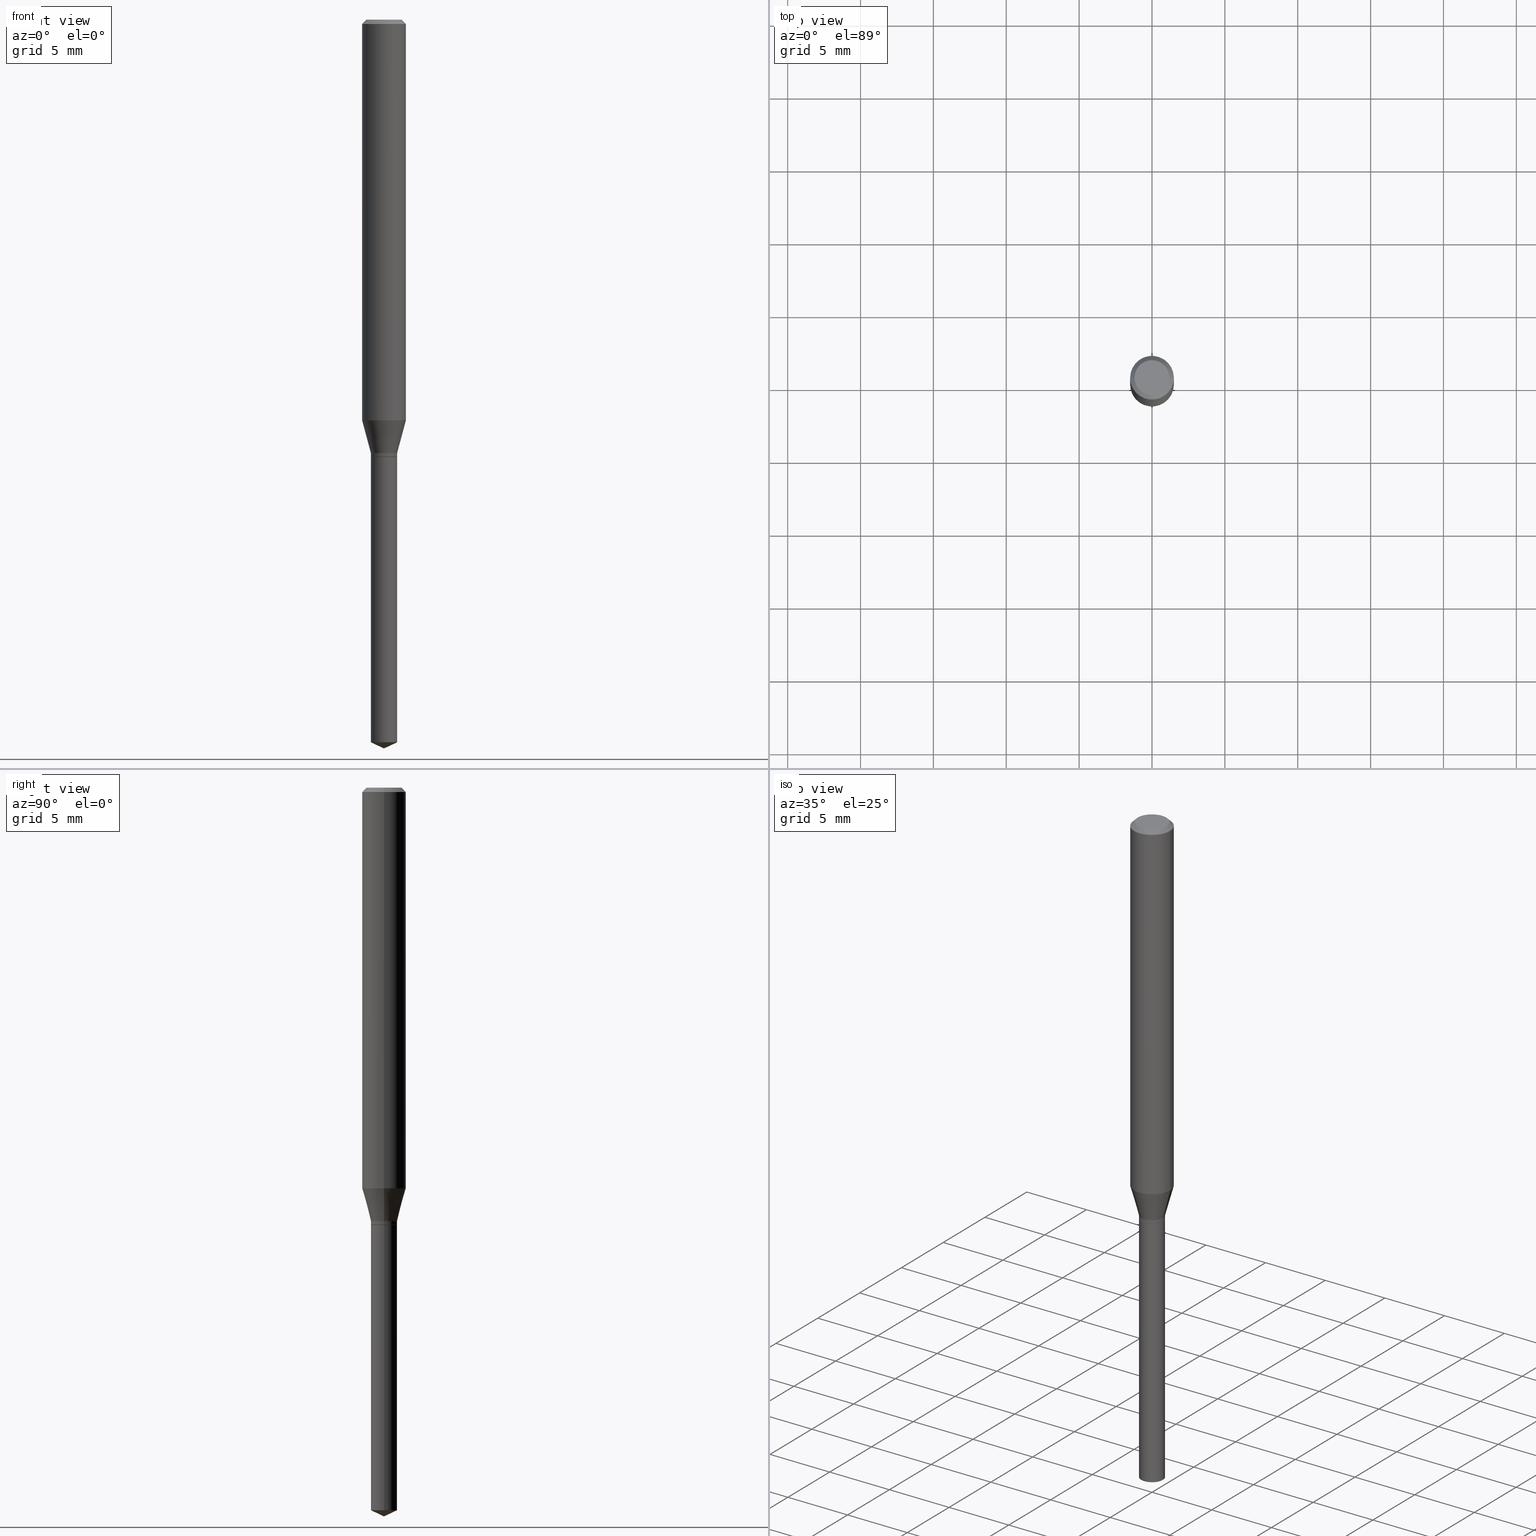
[diagram: canonical four-view strip — front | top / right | iso, engineering-drawing reading convention]
A machine part, canonical four-view strip (front | top / right | iso — engineering-drawing reading convention). The complete STEP part file that produces these views, byte-faithful:
ISO-10303-21;
HEADER;
FILE_DESCRIPTION (( 'STEP AP203' ),
    '1' );
FILE_NAME ('08362.STEP',
    '2024-04-24T14:36:21',
    ( '' ),
    ( '' ),
    'SwSTEP 2.0',
    'SolidWorks 2023',
    '' );
FILE_SCHEMA (( 'CONFIG_CONTROL_DESIGN' ));
ENDSEC;

DATA;
#1 = ORIENTED_EDGE ( 'NONE', *, *, #196, .T. ) ;
#2 = DIRECTION ( 'NONE',  ( 1.000000000000000000, -6.982962677686267499E-15, 0.000000000000000000 ) ) ;
#3 = DIRECTION ( 'NONE',  ( -2.445468806185136597E-29, 3.491481338843145583E-15, 1.000000000000000000 ) ) ;
#4 = ORIENTED_EDGE ( 'NONE', *, *, #399, .T. ) ;
#5 = CARTESIAN_POINT ( 'NONE',  ( 2.888098660104665956E-31, -4.123439461173782728E-17, -0.01181000000000007912 ) ) ;
#6 = CARTESIAN_POINT ( 'NONE',  ( -2.896534483938131925E-30, -8.678357466075359937E-15, -1.181599999999999984 ) ) ;
#7 = PRODUCT_DEFINITION ( 'UNKNOWN', '', #435, #342 ) ;
#8 = DIRECTION ( 'NONE',  ( 0.000000000000000000, 0.000000000000000000, 1.000000000000000000 ) ) ;
#9 = ORIENTED_EDGE ( 'NONE', *, *, #101, .F. ) ;
#10 = DIRECTION ( 'NONE',  ( -2.445468806185136597E-29, 3.491481338843145583E-15, 1.000000000000000000 ) ) ;
#11 = FACE_OUTER_BOUND ( 'NONE', #280, .T. ) ;
#12 = LOCAL_TIME ( 10, 36, 21.00000000000000000, #219 ) ;
#13 = CARTESIAN_POINT ( 'NONE',  ( 0.03545000000000000928, -4.371334636231618486E-15, -1.181100000000000039 ) ) ;
#14 = ORIENTED_EDGE ( 'NONE', *, *, #217, .T. ) ;
#15 = CARTESIAN_POINT ( 'NONE',  ( -0.03545000000000000928, 2.518873998269555818E-16, -1.743762489495364439E-30 ) ) ;
#16 = PRODUCT_DEFINITION_SHAPE ( 'NONE', 'NONE',  #7 ) ;
#17 = DIRECTION ( 'NONE',  ( -2.445468806185136597E-29, 3.491481338843145583E-15, 1.000000000000000000 ) ) ;
#18 = AXIS2_PLACEMENT_3D ( 'NONE', #142, #253, #291 ) ;
#19 = ADVANCED_FACE ( 'NONE', ( #263 ), #76, .T. ) ;
#20 = APPLICATION_CONTEXT ( 'configuration controlled 3d designs of mechanical parts and assemblies' ) ;
#21 = EDGE_LOOP ( 'NONE', ( #344, #14 ) ) ;
#22 = ORIENTED_EDGE ( 'NONE', *, *, #463, .F. ) ;
#23 = EDGE_CURVE ( 'NONE', #143, #188, #192, .T. ) ;
#24 = VERTEX_POINT ( 'NONE', #287 ) ;
#25 = AXIS2_PLACEMENT_3D ( 'NONE', #159, #278, #197 ) ;
#26 = ORIENTED_EDGE ( 'NONE', *, *, #484, .T. ) ;
#27 = PERSON_AND_ORGANIZATION ( #92, #252 ) ;
#28 = PERSON_AND_ORGANIZATION_ROLE ( 'creator' ) ;
#29 = ORIENTED_EDGE ( 'NONE', *, *, #101, .T. ) ;
#30 = ORIENTED_EDGE ( 'NONE', *, *, #158, .F. ) ;
#31 = CARTESIAN_POINT ( 'NONE',  ( 2.888343206985265437E-29, -4.123788609307639813E-15, -1.181100000000000039 ) ) ;
#32 = LINE ( 'NONE', #466, #44 ) ;
#33 = DIRECTION ( 'NONE',  ( -2.445468806185136877E-29, 3.491481338843145188E-15, 1.000000000000000000 ) ) ;
#34 = ADVANCED_FACE ( 'NONE', ( #98 ), #139, .T. ) ;
#35 = PERSON_AND_ORGANIZATION ( #92, #252 ) ;
#36 = CIRCLE ( 'NONE', #301, 0.03545000000000000234 ) ;
#37 = LOCAL_TIME ( 10, 36, 21.00000000000000000, #255 ) ;
#38 = ORIENTED_EDGE ( 'NONE', *, *, #410, .F. ) ;
#39 = DIRECTION ( 'NONE',  ( -2.445468806185136597E-29, 3.491481338843145583E-15, 1.000000000000000000 ) ) ;
#40 = CARTESIAN_POINT ( 'NONE',  ( -0.03545000000000000928, -3.854269228719525270E-15, -1.170999999999999819 ) ) ;
#41 = UNCERTAINTY_MEASURE_WITH_UNIT (LENGTH_MEASURE( 1.000000000000000082E-05 ), #55, 'distance_accuracy_value', 'NONE');
#42 = ADVANCED_FACE ( 'NONE', ( #57 ), #257, .T. ) ;
#43 = DIRECTION ( 'NONE',  ( 0.7071067811864326647, -2.468850131081054837E-15, 0.7071067811866621478 ) ) ;
#44 = VECTOR ( 'NONE', #242, 39.37007874015748854 ) ;
#45 = AXIS2_PLACEMENT_3D ( 'NONE', #115, #338, #382 ) ;
#46 = EDGE_LOOP ( 'NONE', ( #315, #26, #30 ) ) ;
#47 = CYLINDRICAL_SURFACE ( 'NONE', #102, 0.03545000000000000234 ) ;
#48 = CARTESIAN_POINT ( 'NONE',  ( 4.774702996880473666E-29, -6.817010452131907471E-15, -1.952469393518405649 ) ) ;
#49 = DIRECTION ( 'NONE',  ( 1.000000000000000000, -6.982962677686266711E-15, 4.876176775795936353E-29 ) ) ;
#50 = EDGE_CURVE ( 'NONE', #420, #418, #294, .T. ) ;
#51 = ORIENTED_EDGE ( 'NONE', *, *, #431, .F. ) ;
#52 = LINE ( 'NONE', #236, #141 ) ;
#53 = AXIS2_PLACEMENT_3D ( 'NONE', #248, #89, #87 ) ;
#54 =( NAMED_UNIT ( * ) PLANE_ANGLE_UNIT ( ) SI_UNIT ( $, .RADIAN. ) );
#55 =( CONVERSION_BASED_UNIT ( 'INCH', #348 ) LENGTH_UNIT ( ) NAMED_UNIT ( #323 ) );
#56 = ADVANCED_FACE ( 'NONE', ( #11 ), #353, .T. ) ;
#57 = FACE_OUTER_BOUND ( 'NONE', #46, .T. ) ;
#58 = FACE_OUTER_BOUND ( 'NONE', #447, .T. ) ;
#59 = AXIS2_PLACEMENT_3D ( 'NONE', #205, #320, #438 ) ;
#60 = AXIS2_PLACEMENT_3D ( 'NONE', #316, #17, #131 ) ;
#61 = VERTEX_POINT ( 'NONE', #169 ) ;
#62 = ORIENTED_EDGE ( 'NONE', *, *, #317, .T. ) ;
#63 = ORIENTED_EDGE ( 'NONE', *, *, #324, .F. ) ;
#64 = ORIENTED_EDGE ( 'NONE', *, *, #268, .T. ) ;
#65 = EDGE_LOOP ( 'NONE', ( #195, #123, #105, #81 ) ) ;
#66 = DIRECTION ( 'NONE',  ( 1.000000000000000000, -6.982962677686266711E-15, 4.876185090822587894E-29 ) ) ;
#67 = CARTESIAN_POINT ( 'NONE',  ( 0.03545000000000000928, -4.336070674709300958E-15, -1.170999999999999819 ) ) ;
#68 = AXIS2_PLACEMENT_3D ( 'NONE', #375, #120, #346 ) ;
#69 = VECTOR ( 'NONE', #122, 39.37007874015748854 ) ;
#70 = ORIENTED_EDGE ( 'NONE', *, *, #90, .T. ) ;
#71 = CALENDAR_DATE ( 2024, 24, 4 ) ;
#72 = CARTESIAN_POINT ( 'NONE',  ( 0.04724000000000000421, -3.852183633974369838E-16, -3.380025165621689721E-19 ) ) ;
#73 = APPROVAL_ROLE ( '' ) ;
#74 = ORIENTED_EDGE ( 'NONE', *, *, #90, .F. ) ;
#75 = DIRECTION ( 'NONE',  ( -2.445468806185136877E-29, 3.491481338843145188E-15, 1.000000000000000000 ) ) ;
#76 = CYLINDRICAL_SURFACE ( 'NONE', #363, 0.03545000000000000234 ) ;
#77 = AXIS2_PLACEMENT_3D ( 'NONE', #469, #389, #444 ) ;
#78 = CIRCLE ( 'NONE', #45, 0.05905000000000013710 ) ;
#79 = CARTESIAN_POINT ( 'NONE',  ( 2.889565941388358239E-29, -4.125534349977062106E-15, -1.181600000000000206 ) ) ;
#80 = ADVANCED_FACE ( 'NONE', ( #426 ), #88, .F. ) ;
#81 = ORIENTED_EDGE ( 'NONE', *, *, #182, .F. ) ;
#82 = DIRECTION ( 'NONE',  ( 1.000000000000000000, -6.982962677686267499E-15, 0.000000000000000000 ) ) ;
#83 = DIRECTION ( 'NONE',  ( -0.9063077870366547106, 7.915267918739013053E-15, 0.4226182617406894493 ) ) ;
#84 = APPROVAL ( #97, 'UNSPECIFIED' ) ;
#85 = PLANE ( 'NONE',  #77 ) ;
#86 = CONICAL_SURFACE ( 'NONE', #127, 0.05905000000000000526, 0.7853981633974452814 ) ;
#87 = DIRECTION ( 'NONE',  ( 1.000000000000000000, -6.982962677686268288E-15, 0.000000000000000000 ) ) ;
#88 = PLANE ( 'NONE',  #140 ) ;
#89 = DIRECTION ( 'NONE',  ( -2.445468806185136597E-29, 3.491481338843145583E-15, 1.000000000000000000 ) ) ;
#90 = EDGE_CURVE ( 'NONE', #276, #61, #36, .T. ) ;
#91 = FACE_OUTER_BOUND ( 'NONE', #332, .T. ) ;
#92 = PERSON ( 'UNSPECIFIED', 'UNSPECIFIED', 'UNSPECIFIED', ('UNSPECIFIED'), ('UNSPECIFIED'), ('UNSPECIFIED') ) ;
#93 = DIRECTION ( 'NONE',  ( -2.445468806185136597E-29, 3.491481338843145583E-15, 1.000000000000000000 ) ) ;
#94 = VECTOR ( 'NONE', #75, 39.37007874015748143 ) ;
#95 = DIRECTION ( 'NONE',  ( 0.2588190451025211836, 1.565188264969622559E-15, 0.9659258262890679791 ) ) ;
#96 = DIRECTION ( 'NONE',  ( -0.7071067811865453523, 2.468850131082234184E-15, -0.7071067811865496822 ) ) ;
#97 = APPROVAL_STATUS ( 'not_yet_approved' ) ;
#98 = FACE_OUTER_BOUND ( 'NONE', #445, .T. ) ;
#99 = CONICAL_SURFACE ( 'NONE', #68, 0.05905000000000000526, 0.7853981633974452814 ) ;
#100 = ORIENTED_EDGE ( 'NONE', *, *, #303, .T. ) ;
#101 = EDGE_CURVE ( 'NONE', #289, #420, #148, .T. ) ;
#102 = AXIS2_PLACEMENT_3D ( 'NONE', #194, #157, #277 ) ;
#103 = ORIENTED_EDGE ( 'NONE', *, *, #50, .F. ) ;
#104 = PRODUCT ( '08362', '08362', '', ( #485 ) ) ;
#105 = ORIENTED_EDGE ( 'NONE', *, *, #324, .T. ) ;
#106 = ORIENTED_EDGE ( 'NONE', *, *, #393, .F. ) ;
#107 = DATE_AND_TIME ( #411, #12 ) ;
#108 = VERTEX_POINT ( 'NONE', #297 ) ;
#109 = AXIS2_PLACEMENT_3D ( 'NONE', #175, #441, #400 ) ;
#110 = CC_DESIGN_APPROVAL ( #322, ( #7 ) ) ;
#111 = APPROVAL_DATE_TIME ( #331, #237 ) ;
#112 = FACE_OUTER_BOUND ( 'NONE', #456, .T. ) ;
#113 = DIRECTION ( 'NONE',  ( 1.000000000000000000, 0.000000000000000000, 0.000000000000000000 ) ) ;
#114 = VERTEX_POINT ( 'NONE', #339 ) ;
#115 = CARTESIAN_POINT ( 'NONE',  ( 2.648255885583811047E-29, -3.781007544079628812E-15, -1.082923600941374076 ) ) ;
#116 = COORDINATED_UNIVERSAL_TIME_OFFSET ( 5, 0, .BEHIND. ) ;
#117 = ORIENTED_EDGE ( 'NONE', *, *, #130, .F. ) ;
#118 = DIRECTION ( 'NONE',  ( -2.445468806185136597E-29, 3.491481338843145583E-15, 1.000000000000000000 ) ) ;
#119 = AXIS2_PLACEMENT_3D ( 'NONE', #168, #10, #204 ) ;
#120 = DIRECTION ( 'NONE',  ( 2.445468806185136597E-29, -3.491481338843145583E-15, -1.000000000000000000 ) ) ;
#121 = FACE_OUTER_BOUND ( 'NONE', #150, .T. ) ;
#122 = DIRECTION ( 'NONE',  ( -0.7071067811864326647, 7.493145998869937642E-15, 0.7071067811866621478 ) ) ;
#123 = ORIENTED_EDGE ( 'NONE', *, *, #23, .T. ) ;
#124 = DIRECTION ( 'NONE',  ( 1.000000000000000000, -6.982962677686254089E-15, 0.000000000000000000 ) ) ;
#125 = DIRECTION ( 'NONE',  ( -2.445468806185136597E-29, 3.491481338843145583E-15, 1.000000000000000000 ) ) ;
#126 = DIRECTION ( 'NONE',  ( 1.000000000000000000, -6.982962677686266711E-15, 0.000000000000000000 ) ) ;
#127 = AXIS2_PLACEMENT_3D ( 'NONE', #211, #164, #386 ) ;
#128 = CARTESIAN_POINT ( 'NONE',  ( 4.774702996880473666E-29, -6.817010452131907471E-15, -1.952469393518405649 ) ) ;
#129 = ORIENTED_EDGE ( 'NONE', *, *, #458, .T. ) ;
#130 = EDGE_CURVE ( 'NONE', #24, #418, #167, .T. ) ;
#131 = DIRECTION ( 'NONE',  ( 1.000000000000000000, -6.982962677686266711E-15, 4.876176775795936353E-29 ) ) ;
#132 = ORIENTED_EDGE ( 'NONE', *, *, #182, .T. ) ;
#133 =( LENGTH_UNIT ( ) NAMED_UNIT ( * ) SI_UNIT ( $, .METRE. ) );
#134 = DIRECTION ( 'NONE',  ( -2.445468806185136597E-29, 3.491481338843145583E-15, 1.000000000000000000 ) ) ;
#135 = ADVANCED_FACE ( 'NONE', ( #58 ), #86, .T. ) ;
#136 = CARTESIAN_POINT ( 'NONE',  ( 0.03545000000000000928, -4.336070674709300958E-15, -1.170999999999999819 ) ) ;
#137 = APPROVAL_PERSON_ORGANIZATION ( #448, #237, #172 ) ;
#138 = VERTEX_POINT ( 'NONE', #471 ) ;
#139 = CYLINDRICAL_SURFACE ( 'NONE', #18, 0.05905000000000006771 ) ;
#140 = AXIS2_PLACEMENT_3D ( 'NONE', #238, #311, #439 ) ;
#141 = VECTOR ( 'NONE', #281, 39.37007874015748143 ) ;
#142 = CARTESIAN_POINT ( 'NONE',  ( 0.000000000000000000, 0.000000000000000000, 0.000000000000000000 ) ) ;
#143 = VERTEX_POINT ( 'NONE', #246 ) ;
#144 = APPROVAL_DATE_TIME ( #477, #84 ) ;
#145 = ORIENTED_EDGE ( 'NONE', *, *, #303, .F. ) ;
#146 = AXIS2_PLACEMENT_3D ( 'NONE', #128, #464, #124 ) ;
#147 = CARTESIAN_POINT ( 'NONE',  ( -9.146317137672921654E-28, 1.305851684738629534E-13, 37.40107874015748024 ) ) ;
#148 = LINE ( 'NONE', #152, #475 ) ;
#149 = PERSON_AND_ORGANIZATION_ROLE ( 'design_owner' ) ;
#150 = EDGE_LOOP ( 'NONE', ( #210, #51, #381, #100 ) ) ;
#151 = CARTESIAN_POINT ( 'NONE',  ( 2.889565941388358239E-29, -4.125534349977062106E-15, -1.181600000000000206 ) ) ;
#152 = CARTESIAN_POINT ( 'NONE',  ( 0.05905000000000006771, -4.123439461173745257E-16, 2.879382386107503723E-30 ) ) ;
#153 = ORIENTED_EDGE ( 'NONE', *, *, #217, .F. ) ;
#154 = DIRECTION ( 'NONE',  ( -2.445468806185136597E-29, 3.491481338843145583E-15, 1.000000000000000000 ) ) ;
#155 = CONICAL_SURFACE ( 'NONE', #208, 0.03545000000000000928, 0.2617993877991499074 ) ;
#156 = DIRECTION ( 'NONE',  ( -2.445468806185136597E-29, 3.491481338843145583E-15, 1.000000000000000000 ) ) ;
#157 = DIRECTION ( 'NONE',  ( -2.445468806185136597E-29, 3.491481338843145583E-15, 1.000000000000000000 ) ) ;
#158 = EDGE_CURVE ( 'NONE', #309, #138, #358, .T. ) ;
#159 = CARTESIAN_POINT ( 'NONE',  ( 0.000000000000000000, 0.000000000000000000, 0.000000000000000000 ) ) ;
#160 = CYLINDRICAL_SURFACE ( 'NONE', #60, 0.03545000000000000928 ) ;
#161 = CC_DESIGN_APPROVAL ( #237, ( #435 ) ) ;
#162 = ORIENTED_EDGE ( 'NONE', *, *, #368, .F. ) ;
#163 = ORIENTED_EDGE ( 'NONE', *, *, #228, .T. ) ;
#164 = DIRECTION ( 'NONE',  ( 2.445468806185136597E-29, -3.491481338843145583E-15, -1.000000000000000000 ) ) ;
#165 = CARTESIAN_POINT ( 'NONE',  ( 0.05905000000000000526, -4.535783407291119586E-16, -0.01181000000000007912 ) ) ;
#166 = ORIENTED_EDGE ( 'NONE', *, *, #268, .F. ) ;
#167 = LINE ( 'NONE', #359, #207 ) ;
#168 = CARTESIAN_POINT ( 'NONE',  ( 2.863643972042794547E-29, -4.088524647785323075E-15, -1.170999999999999819 ) ) ;
#169 = CARTESIAN_POINT ( 'NONE',  ( -0.03545000000000000234, -5.219385001227529009E-15, -1.181600000000000206 ) ) ;
#170 = CARTESIAN_POINT ( 'NONE',  ( -0.05905000000000000526, -1.491545483879342988E-15, -0.01181000000000007912 ) ) ;
#171 = CC_DESIGN_PERSON_AND_ORGANIZATION_ASSIGNMENT ( #183, #260, ( #218 ) ) ;
#172 = APPROVAL_ROLE ( '' ) ;
#173 = AXIS2_PLACEMENT_3D ( 'NONE', #190, #156, #296 ) ;
#174 = ORIENTED_EDGE ( 'NONE', *, *, #196, .F. ) ;
#175 = CARTESIAN_POINT ( 'NONE',  ( 2.888343206985265437E-29, -4.123788609307639813E-15, -1.181100000000000039 ) ) ;
#176 = EDGE_CURVE ( 'NONE', #138, #309, #487, .T. ) ;
#177 = ORIENTED_EDGE ( 'NONE', *, *, #262, .F. ) ;
#178 = AXIS2_PLACEMENT_3D ( 'NONE', #264, #261, #191 ) ;
#179 = AXIS2_PLACEMENT_3D ( 'NONE', #151, #335, #299 ) ;
#180 = EDGE_LOOP ( 'NONE', ( #250, #1, #74, #313 ) ) ;
#181 = SECURITY_CLASSIFICATION_LEVEL ( 'unclassified' ) ;
#182 = EDGE_CURVE ( 'NONE', #361, #216, #251, .T. ) ;
#183 = PERSON_AND_ORGANIZATION ( #92, #252 ) ;
#184 = CARTESIAN_POINT ( 'NONE',  ( 2.889565941388357678E-29, -4.125534349977061317E-15, -1.181600000000000206 ) ) ;
#185 = CARTESIAN_POINT ( 'NONE',  ( -0.03545000000000000234, -6.565123052304952086E-15, -1.952469393518405649 ) ) ;
#186 = CONICAL_SURFACE ( 'NONE', #226, 0.03545000000000000928, 0.2617993877991499074 ) ;
#187 = APPROVAL_ROLE ( '' ) ;
#188 = VERTEX_POINT ( 'NONE', #13 ) ;
#189 = CARTESIAN_POINT ( 'NONE',  ( -0.05905000000000013710, -3.361432058613288530E-15, -1.082923600941374076 ) ) ;
#190 = CARTESIAN_POINT ( 'NONE',  ( 2.889565941388358239E-29, -4.125534349977062106E-15, -1.181600000000000206 ) ) ;
#191 = DIRECTION ( 'NONE',  ( 1.000000000000000000, -6.982962677686267499E-15, 0.000000000000000000 ) ) ;
#192 = CIRCLE ( 'NONE', #109, 0.03545000000000000928 ) ;
#193 = CIRCLE ( 'NONE', #53, 0.03545000000000000234 ) ;
#194 = CARTESIAN_POINT ( 'NONE',  ( 2.889565941388357118E-29, -4.125534349977060528E-15, -1.181599999999999984 ) ) ;
#195 = ORIENTED_EDGE ( 'NONE', *, *, #421, .F. ) ;
#196 = EDGE_CURVE ( 'NONE', #309, #61, #243, .T. ) ;
#197 = DIRECTION ( 'NONE',  ( 1.000000000000000000, -6.982962677686266711E-15, 4.876176775795936353E-29 ) ) ;
#198 = VERTEX_POINT ( 'NONE', #461 ) ;
#199 = DIRECTION ( 'NONE',  ( 0.9063077870366547106, -4.853149677051446632E-15, 0.4226182617406894493 ) ) ;
#200 = CIRCLE ( 'NONE', #424, 0.04724000000000000421 ) ;
#201 = AXIS2_PLACEMENT_3D ( 'NONE', #147, #3, #414 ) ;
#202 = DIRECTION ( 'NONE',  ( 1.000000000000000000, -6.982962677686266711E-15, 0.000000000000000000 ) ) ;
#203 =( NAMED_UNIT ( * ) SI_UNIT ( $, .STERADIAN. ) SOLID_ANGLE_UNIT ( ) );
#204 = DIRECTION ( 'NONE',  ( 1.000000000000000000, -6.982962677686266711E-15, 0.000000000000000000 ) ) ;
#205 = CARTESIAN_POINT ( 'NONE',  ( -9.146317137672921654E-28, 1.305851684738629534E-13, 37.40107874015748024 ) ) ;
#206 = ORIENTED_EDGE ( 'NONE', *, *, #449, .T. ) ;
#207 = VECTOR ( 'NONE', #96, 39.37007874015748143 ) ;
#208 = AXIS2_PLACEMENT_3D ( 'NONE', #468, #125, #202 ) ;
#209 = ADVANCED_FACE ( 'NONE', ( #430 ), #85, .F. ) ;
#210 = ORIENTED_EDGE ( 'NONE', *, *, #489, .F. ) ;
#211 = CARTESIAN_POINT ( 'NONE',  ( 2.888098660104665956E-31, -4.123439461173782728E-17, -0.01181000000000007912 ) ) ;
#212 = ORIENTED_EDGE ( 'NONE', *, *, #23, .F. ) ;
#213 = EDGE_LOOP ( 'NONE', ( #106, #64, #472, #212 ) ) ;
#214 = ORIENTED_EDGE ( 'NONE', *, *, #410, .T. ) ;
#215 = DATE_TIME_ROLE ( 'creation_date' ) ;
#216 = VERTEX_POINT ( 'NONE', #67 ) ;
#217 = EDGE_CURVE ( 'NONE', #333, #24, #200, .T. ) ;
#218 = SECURITY_CLASSIFICATION ( '', '', #181 ) ;
#219 = COORDINATED_UNIVERSAL_TIME_OFFSET ( 5, 0, .BEHIND. ) ;
#220 = DIRECTION ( 'NONE',  ( -2.445468806185136597E-29, 3.491481338843145583E-15, 1.000000000000000000 ) ) ;
#221 = PERSON_AND_ORGANIZATION_ROLE ( 'design_supplier' ) ;
#222 = CARTESIAN_POINT ( 'NONE',  ( 0.05905000000000013710, -4.193351490197004521E-15, -1.082923600941374076 ) ) ;
#223 = DIRECTION ( 'NONE',  ( -2.445468806185136597E-29, 3.491481338843145583E-15, 1.000000000000000000 ) ) ;
#224 = PERSON_AND_ORGANIZATION ( #92, #252 ) ;
#225 = LINE ( 'NONE', #419, #69 ) ;
#226 = AXIS2_PLACEMENT_3D ( 'NONE', #341, #369, #300 ) ;
#227 = CIRCLE ( 'NONE', #173, 0.03495000000000000190 ) ;
#228 = EDGE_CURVE ( 'NONE', #361, #398, #32, .T. ) ;
#229 = APPROVAL_STATUS ( 'not_yet_approved' ) ;
#230 = PLANE ( 'NONE',  #265 ) ;
#231 = DIRECTION ( 'NONE',  ( 1.000000000000000000, -6.982962677686264344E-15, 0.000000000000000000 ) ) ;
#232 = ORIENTED_EDGE ( 'NONE', *, *, #449, .F. ) ;
#233 = EDGE_CURVE ( 'NONE', #216, #361, #272, .T. ) ;
#234 = CARTESIAN_POINT ( 'NONE',  ( 4.815128079378533515E-29, -6.874726756182153211E-15, -1.968999999999999861 ) ) ;
#235 = LOCAL_TIME ( 10, 36, 21.00000000000000000, #408 ) ;
#236 = CARTESIAN_POINT ( 'NONE',  ( 0.05905000000000000526, -4.463468013801467941E-16, -0.01181000000000007912 ) ) ;
#237 = APPROVAL ( #229, 'UNSPECIFIED' ) ;
#238 = CARTESIAN_POINT ( 'NONE',  ( -3.351358430974200097E-30, -8.743490843988069203E-15, -1.181600000000000206 ) ) ;
#239 = ADVANCED_FACE ( 'NONE', ( #121 ), #99, .T. ) ;
#240 = DIRECTION ( 'NONE',  ( 1.000000000000000000, -6.982962677686267499E-15, 0.000000000000000000 ) ) ;
#241 = DIRECTION ( 'NONE',  ( -2.445468806185136877E-29, 3.491481338843145188E-15, 1.000000000000000000 ) ) ;
#242 = DIRECTION ( 'NONE',  ( -0.2588190451025211836, 5.211531920934547886E-15, 0.9659258262890679791 ) ) ;
#243 = LINE ( 'NONE', #392, #345 ) ;
#244 = AXIS2_PLACEMENT_3D ( 'NONE', #379, #154, #231 ) ;
#245 = VECTOR ( 'NONE', #427, 39.37007874015748143 ) ;
#246 = CARTESIAN_POINT ( 'NONE',  ( -0.03545000000000000928, -3.854269228719525270E-15, -1.181100000000000039 ) ) ;
#247 = FACE_OUTER_BOUND ( 'NONE', #275, .T. ) ;
#248 = CARTESIAN_POINT ( 'NONE',  ( 2.889565941388357678E-29, -4.125534349977061317E-15, -1.181600000000000206 ) ) ;
#249 = SHAPE_DEFINITION_REPRESENTATION ( #16, #478 ) ;
#250 = ORIENTED_EDGE ( 'NONE', *, *, #176, .T. ) ;
#251 = CIRCLE ( 'NONE', #119, 0.03545000000000000928 ) ;
#252 = ORGANIZATION ( 'UNSPECIFIED', 'UNSPECIFIED', '' ) ;
#253 = DIRECTION ( 'NONE',  ( -2.445468806185136597E-29, 3.491481338843145583E-15, 1.000000000000000000 ) ) ;
#254 = ADVANCED_FACE ( 'NONE', ( #412 ), #186, .T. ) ;
#255 = COORDINATED_UNIVERSAL_TIME_OFFSET ( 5, 0, .BEHIND. ) ;
#256 = ORIENTED_EDGE ( 'NONE', *, *, #393, .T. ) ;
#257 = CONICAL_SURFACE ( 'NONE', #59, 84.42940631927639572, 1.134464013796325332 ) ;
#258 = DATE_AND_TIME ( #293, #425 ) ;
#259 = FACE_OUTER_BOUND ( 'NONE', #180, .T. ) ;
#260 = PERSON_AND_ORGANIZATION_ROLE ( 'classification_officer' ) ;
#261 = DIRECTION ( 'NONE',  ( -2.445468806185136597E-29, 3.491481338843145583E-15, 1.000000000000000000 ) ) ;
#262 = EDGE_CURVE ( 'NONE', #108, #188, #460, .T. ) ;
#263 = FACE_OUTER_BOUND ( 'NONE', #292, .T. ) ;
#264 = CARTESIAN_POINT ( 'NONE',  ( 2.888098660104665956E-31, -4.123439461173782728E-17, -0.01181000000000007912 ) ) ;
#265 = AXIS2_PLACEMENT_3D ( 'NONE', #6, #490, #409 ) ;
#266 = CIRCLE ( 'NONE', #290, 0.03495000000000000190 ) ;
#267 = CARTESIAN_POINT ( 'NONE',  ( 2.889565941388358239E-29, -4.125534349977062106E-15, -1.181600000000000206 ) ) ;
#268 = EDGE_CURVE ( 'NONE', #114, #108, #266, .T. ) ;
#269 = MANIFOLD_SOLID_BREP ( 'Body-Move/Copy2[2]', #383 ) ;
#270 = LINE ( 'NONE', #234, #273 ) ;
#271 = APPLICATION_PROTOCOL_DEFINITION ( 'international standard', 'config_control_design', 1994, #20 ) ;
#272 = CIRCLE ( 'NONE', #482, 0.03545000000000000928 ) ;
#273 = VECTOR ( 'NONE', #83, 39.37007874015748854 ) ;
#274 = CARTESIAN_POINT ( 'NONE',  ( -0.05905000000000006771, 4.195754854663396409E-16, -2.904631170795525045E-30 ) ) ;
#275 = EDGE_LOOP ( 'NONE', ( #467, #163, #330, #22 ) ) ;
#276 = VERTEX_POINT ( 'NONE', #343 ) ;
#277 = DIRECTION ( 'NONE',  ( 1.000000000000000000, -6.982962677686254089E-15, 0.000000000000000000 ) ) ;
#278 = DIRECTION ( 'NONE',  ( -2.445468806185136597E-29, 3.491481338843145583E-15, 1.000000000000000000 ) ) ;
#279 = DIRECTION ( 'NONE',  ( 1.000000000000000000, -6.982962677686254089E-15, 0.000000000000000000 ) ) ;
#280 = EDGE_LOOP ( 'NONE', ( #232, #214, #29, #145 ) ) ;
#281 = DIRECTION ( 'NONE',  ( 0.7071067811865453523, -7.319954787623248157E-15, -0.7071067811865496822 ) ) ;
#282 = CONICAL_SURFACE ( 'NONE', #179, 0.03495000000000000190, 0.7853981633972860754 ) ;
#283 = CONICAL_SURFACE ( 'NONE', #201, 84.42940631927639572, 1.134464013796325332 ) ;
#284 = DIRECTION ( 'NONE',  ( 1.000000000000000000, -6.982962677686266711E-15, 4.876185090822587894E-29 ) ) ;
#285 = EDGE_CURVE ( 'NONE', #188, #143, #350, .T. ) ;
#286 = PERSON_AND_ORGANIZATION_ROLE ( 'creator' ) ;
#287 = CARTESIAN_POINT ( 'NONE',  ( -0.04724000000000000421, 3.504923541997677355E-16, -3.380025165670481712E-19 ) ) ;
#288 = CARTESIAN_POINT ( 'NONE',  ( 2.889565941388357118E-29, -4.125534349977060528E-15, -1.181599999999999984 ) ) ;
#289 = VERTEX_POINT ( 'NONE', #222 ) ;
#290 = AXIS2_PLACEMENT_3D ( 'NONE', #267, #118, #82 ) ;
#291 = DIRECTION ( 'NONE',  ( 1.000000000000000000, -6.982962677686266711E-15, 4.876176775795936353E-29 ) ) ;
#292 = EDGE_LOOP ( 'NONE', ( #174, #321, #129, #454 ) ) ;
#293 = CALENDAR_DATE ( 2024, 24, 4 ) ;
#294 = CIRCLE ( 'NONE', #374, 0.05905000000000000526 ) ;
#295 = ADVANCED_FACE ( 'NONE', ( #452 ), #230, .F. ) ;
#296 = DIRECTION ( 'NONE',  ( 1.000000000000000000, -6.982962677686267499E-15, 0.000000000000000000 ) ) ;
#297 = CARTESIAN_POINT ( 'NONE',  ( 0.03495000000000000190, -4.369588895562196982E-15, -1.181600000000000206 ) ) ;
#298 = DATE_AND_TIME ( #319, #470 ) ;
#299 = DIRECTION ( 'NONE',  ( 1.000000000000000000, -6.982962677686267499E-15, 0.000000000000000000 ) ) ;
#300 = DIRECTION ( 'NONE',  ( 1.000000000000000000, -6.982962677686266711E-15, 0.000000000000000000 ) ) ;
#301 = AXIS2_PLACEMENT_3D ( 'NONE', #184, #223, #371 ) ;
#302 = AXIS2_PLACEMENT_3D ( 'NONE', #347, #8, #113 ) ;
#303 = EDGE_CURVE ( 'NONE', #418, #420, #391, .T. ) ;
#304 = FACE_OUTER_BOUND ( 'NONE', #364, .T. ) ;
#305 = CC_DESIGN_PERSON_AND_ORGANIZATION_ASSIGNMENT ( #27, #149, ( #104 ) ) ;
#306 = CC_DESIGN_DATE_AND_TIME_ASSIGNMENT ( #298, #215, ( #7 ) ) ;
#307 = CARTESIAN_POINT ( 'NONE',  ( 4.815128079378533515E-29, -6.874726756182153211E-15, -1.968999999999999861 ) ) ;
#308 = FACE_OUTER_BOUND ( 'NONE', #65, .T. ) ;
#309 = VERTEX_POINT ( 'NONE', #185 ) ;
#310 = VECTOR ( 'NONE', #241, 39.37007874015748143 ) ;
#311 = DIRECTION ( 'NONE',  ( -2.438088387897960049E-29, 3.491481338843145188E-15, 1.000000000000000000 ) ) ;
#312 = CARTESIAN_POINT ( 'NONE',  ( 0.03545000000000000234, -4.373080376901038411E-15, -1.181599999999999984 ) ) ;
#313 = ORIENTED_EDGE ( 'NONE', *, *, #458, .F. ) ;
#314 = LINE ( 'NONE', #136, #328 ) ;
#315 = ORIENTED_EDGE ( 'NONE', *, *, #399, .F. ) ;
#316 = CARTESIAN_POINT ( 'NONE',  ( 0.000000000000000000, 0.000000000000000000, 0.000000000000000000 ) ) ;
#317 = EDGE_CURVE ( 'NONE', #289, #398, #459, .T. ) ;
#318 = AXIS2_PLACEMENT_3D ( 'NONE', #79, #462, #2 ) ;
#319 = CALENDAR_DATE ( 2024, 24, 4 ) ;
#320 = DIRECTION ( 'NONE',  ( -2.445468806185136597E-29, 3.491481338843145583E-15, 1.000000000000000000 ) ) ;
#321 = ORIENTED_EDGE ( 'NONE', *, *, #158, .T. ) ;
#322 = APPROVAL ( #337, 'UNSPECIFIED' ) ;
#323 = DIMENSIONAL_EXPONENTS ( 1.000000000000000000, 0.000000000000000000, 0.000000000000000000, 0.000000000000000000, 0.000000000000000000, 0.000000000000000000, 0.000000000000000000 ) ;
#324 = EDGE_CURVE ( 'NONE', #188, #216, #457, .T. ) ;
#325 = DIRECTION ( 'NONE',  ( 1.000000000000000000, -6.982962677686254089E-15, 0.000000000000000000 ) ) ;
#326 = ORIENTED_EDGE ( 'NONE', *, *, #479, .T. ) ;
#327 = AXIS2_PLACEMENT_3D ( 'NONE', #436, #474, #49 ) ;
#328 = VECTOR ( 'NONE', #95, 39.37007874015748854 ) ;
#329 = CARTESIAN_POINT ( 'NONE',  ( 2.863643972042794547E-29, -4.088524647785323075E-15, -1.170999999999999819 ) ) ;
#330 = ORIENTED_EDGE ( 'NONE', *, *, #317, .F. ) ;
#331 = DATE_AND_TIME ( #71, #37 ) ;
#332 = EDGE_LOOP ( 'NONE', ( #465, #373, #388, #63 ) ) ;
#333 = VERTEX_POINT ( 'NONE', #72 ) ;
#334 = ADVANCED_FACE ( 'NONE', ( #488 ), #282, .T. ) ;
#335 = DIRECTION ( 'NONE',  ( -2.445468806185136597E-29, 3.491481338843145583E-15, 1.000000000000000000 ) ) ;
#336 = VECTOR ( 'NONE', #199, 39.37007874015748854 ) ;
#337 = APPROVAL_STATUS ( 'not_yet_approved' ) ;
#338 = DIRECTION ( 'NONE',  ( -2.445468806185136597E-29, 3.491481338843145583E-15, 1.000000000000000000 ) ) ;
#339 = CARTESIAN_POINT ( 'NONE',  ( -0.03495000000000000190, -3.874550436654795630E-15, -1.181600000000000206 ) ) ;
#340 = ORIENTED_EDGE ( 'NONE', *, *, #489, .T. ) ;
#341 = CARTESIAN_POINT ( 'NONE',  ( 2.863643972042794547E-29, -4.088524647785323075E-15, -1.170999999999999819 ) ) ;
#342 = DESIGN_CONTEXT ( 'detailed design', #384, 'design' ) ;
#343 = CARTESIAN_POINT ( 'NONE',  ( 0.03545000000000000234, -4.373080376901039200E-15, -1.181600000000000206 ) ) ;
#344 = ORIENTED_EDGE ( 'NONE', *, *, #431, .T. ) ;
#345 = VECTOR ( 'NONE', #33, 39.37007874015748143 ) ;
#346 = DIRECTION ( 'NONE',  ( -1.000000000000000000, 6.982962677686267499E-15, 0.000000000000000000 ) ) ;
#347 = CARTESIAN_POINT ( 'NONE',  ( 0.000000000000000000, 0.000000000000000000, 0.000000000000000000 ) ) ;
#348 = LENGTH_MEASURE_WITH_UNIT ( LENGTH_MEASURE( 0.02539999999999999897 ), #133 );
#349 = EDGE_LOOP ( 'NONE', ( #162, #166 ) ) ;
#350 = CIRCLE ( 'NONE', #481, 0.03545000000000000928 ) ;
#351 = AXIS2_PLACEMENT_3D ( 'NONE', #352, #433, #284 ) ;
#352 = CARTESIAN_POINT ( 'NONE',  ( 8.265746106709734507E-48, -1.180129479067563789E-33, -3.380025165646692144E-19 ) ) ;
#353 = CYLINDRICAL_SURFACE ( 'NONE', #25, 0.05905000000000006771 ) ;
#354 = ADVANCED_FACE ( 'NONE', ( #112 ), #283, .T. ) ;
#355 = LINE ( 'NONE', #274, #245 ) ;
#356 = PRODUCT_RELATED_PRODUCT_CATEGORY ( 'detail', '', ( #104 ) ) ;
#357 = CC_DESIGN_DATE_AND_TIME_ASSIGNMENT ( #107, #377, ( #218 ) ) ;
#358 = CIRCLE ( 'NONE', #434, 0.03545000000000000234 ) ;
#359 = CARTESIAN_POINT ( 'NONE',  ( -0.05905000000000000526, 3.711095515056362547E-16, -0.01181000000000007912 ) ) ;
#360 = EDGE_LOOP ( 'NONE', ( #402, #132, #367, #38 ) ) ;
#361 = VERTEX_POINT ( 'NONE', #40 ) ;
#362 = PERSON_AND_ORGANIZATION ( #92, #252 ) ;
#363 = AXIS2_PLACEMENT_3D ( 'NONE', #288, #480, #325 ) ;
#364 = EDGE_LOOP ( 'NONE', ( #378, #256, #423, #177 ) ) ;
#365 = CIRCLE ( 'NONE', #351, 0.04724000000000000421 ) ;
#366 = PERSON_AND_ORGANIZATION ( #92, #252 ) ;
#367 = ORIENTED_EDGE ( 'NONE', *, *, #463, .T. ) ;
#368 = EDGE_CURVE ( 'NONE', #108, #114, #227, .T. ) ;
#369 = DIRECTION ( 'NONE',  ( -2.445468806185136597E-29, 3.491481338843145583E-15, 1.000000000000000000 ) ) ;
#370 = DIRECTION ( 'NONE',  ( -2.445468806185136597E-29, 3.491481338843145583E-15, 1.000000000000000000 ) ) ;
#371 = DIRECTION ( 'NONE',  ( 1.000000000000000000, -6.982962677686268288E-15, 0.000000000000000000 ) ) ;
#372 = CALENDAR_DATE ( 2024, 24, 4 ) ;
#373 = ORIENTED_EDGE ( 'NONE', *, *, #421, .T. ) ;
#374 = AXIS2_PLACEMENT_3D ( 'NONE', #5, #93, #240 ) ;
#375 = CARTESIAN_POINT ( 'NONE',  ( 2.888098660104665956E-31, -4.123439461173782728E-17, -0.01181000000000007912 ) ) ;
#376 = DIRECTION ( 'NONE',  ( -2.445468806185136877E-29, 3.491481338843145188E-15, 1.000000000000000000 ) ) ;
#377 = DATE_TIME_ROLE ( 'classification_date' ) ;
#378 = ORIENTED_EDGE ( 'NONE', *, *, #368, .T. ) ;
#379 = CARTESIAN_POINT ( 'NONE',  ( 2.648255885583811047E-29, -3.781007544079628812E-15, -1.082923600941374076 ) ) ;
#380 = CARTESIAN_POINT ( 'NONE',  ( 0.03545000000000000928, -2.475460269239782286E-16, 1.728604667019659791E-30 ) ) ;
#381 = ORIENTED_EDGE ( 'NONE', *, *, #130, .T. ) ;
#382 = DIRECTION ( 'NONE',  ( 1.000000000000000000, -6.982962677686264344E-15, 0.000000000000000000 ) ) ;
#383 = CLOSED_SHELL ( 'NONE', ( #385, #135, #34, #446, #440, #428, #254, #56, #239, #209, #80, #334 ) ) ;
#384 = APPLICATION_CONTEXT ( 'configuration controlled 3d designs of mechanical parts and assemblies' ) ;
#385 = ADVANCED_FACE ( 'NONE', ( #304 ), #397, .T. ) ;
#386 = DIRECTION ( 'NONE',  ( -1.000000000000000000, 6.982962677686267499E-15, 0.000000000000000000 ) ) ;
#387 = LINE ( 'NONE', #15, #406 ) ;
#388 = ORIENTED_EDGE ( 'NONE', *, *, #233, .F. ) ;
#389 = DIRECTION ( 'NONE',  ( 2.438088387897960049E-29, -3.491481338843145188E-15, -1.000000000000000000 ) ) ;
#390 = LINE ( 'NONE', #307, #336 ) ;
#391 = CIRCLE ( 'NONE', #178, 0.05905000000000000526 ) ;
#392 = CARTESIAN_POINT ( 'NONE',  ( -0.03545000000000000234, -3.873646950150105143E-15, -1.181599999999999984 ) ) ;
#393 = EDGE_CURVE ( 'NONE', #114, #143, #225, .T. ) ;
#394 = EDGE_LOOP ( 'NONE', ( #70, #326 ) ) ;
#395 = CC_DESIGN_PERSON_AND_ORGANIZATION_ASSIGNMENT ( #362, #28, ( #435 ) ) ;
#396 = ORIENTED_EDGE ( 'NONE', *, *, #176, .F. ) ;
#397 = CONICAL_SURFACE ( 'NONE', #318, 0.03495000000000000190, 0.7853981633972860754 ) ;
#398 = VERTEX_POINT ( 'NONE', #189 ) ;
#399 = EDGE_CURVE ( 'NONE', #198, #309, #270, .T. ) ;
#400 = DIRECTION ( 'NONE',  ( 1.000000000000000000, -6.982962677686266711E-15, 0.000000000000000000 ) ) ;
#401 = CARTESIAN_POINT ( 'NONE',  ( 8.265746106709734507E-48, -1.180129479067563789E-33, -3.380025165646692144E-19 ) ) ;
#402 = ORIENTED_EDGE ( 'NONE', *, *, #228, .F. ) ;
#403 = COORDINATED_UNIVERSAL_TIME_OFFSET ( 5, 0, .BEHIND. ) ;
#404 = APPROVAL_DATE_TIME ( #258, #322 ) ;
#405 = CLOSED_SHELL ( 'NONE', ( #413, #354, #42, #19, #295 ) ) ;
#406 = VECTOR ( 'NONE', #429, 39.37007874015748143 ) ;
#407 = ORIENTED_EDGE ( 'NONE', *, *, #484, .F. ) ;
#408 = COORDINATED_UNIVERSAL_TIME_OFFSET ( 5, 0, .BEHIND. ) ;
#409 = DIRECTION ( 'NONE',  ( -1.000000000000000000, 6.982962677686265922E-15, -4.876176775795935793E-29 ) ) ;
#410 = EDGE_CURVE ( 'NONE', #398, #289, #78, .T. ) ;
#411 = CALENDAR_DATE ( 2024, 24, 4 ) ;
#412 = FACE_OUTER_BOUND ( 'NONE', #360, .T. ) ;
#413 = ADVANCED_FACE ( 'NONE', ( #259 ), #47, .T. ) ;
#414 = DIRECTION ( 'NONE',  ( 1.000000000000000000, -6.982962677686267499E-15, 0.000000000000000000 ) ) ;
#415 = CC_DESIGN_APPROVAL ( #84, ( #218 ) ) ;
#416 = CC_DESIGN_PERSON_AND_ORGANIZATION_ASSIGNMENT ( #224, #286, ( #7 ) ) ;
#417 = DIRECTION ( 'NONE',  ( 1.000000000000000000, -6.982962677686266711E-15, 0.000000000000000000 ) ) ;
#418 = VERTEX_POINT ( 'NONE', #170 ) ;
#419 = CARTESIAN_POINT ( 'NONE',  ( -0.03495000000000000190, -3.877199663828906831E-15, -1.181600000000000206 ) ) ;
#420 = VERTEX_POINT ( 'NONE', #165 ) ;
#421 = EDGE_CURVE ( 'NONE', #143, #361, #387, .T. ) ;
#422 = LINE ( 'NONE', #312, #310 ) ;
#423 = ORIENTED_EDGE ( 'NONE', *, *, #285, .F. ) ;
#424 = AXIS2_PLACEMENT_3D ( 'NONE', #401, #370, #66 ) ;
#425 = LOCAL_TIME ( 10, 36, 21.00000000000000000, #403 ) ;
#426 = FACE_OUTER_BOUND ( 'NONE', #349, .T. ) ;
#427 = DIRECTION ( 'NONE',  ( -2.445468806185136877E-29, 3.491481338843145188E-15, 1.000000000000000000 ) ) ;
#428 = ADVANCED_FACE ( 'NONE', ( #308 ), #160, .T. ) ;
#429 = DIRECTION ( 'NONE',  ( -2.445468806185136877E-29, 3.491481338843145188E-15, 1.000000000000000000 ) ) ;
#430 = FACE_OUTER_BOUND ( 'NONE', #21, .T. ) ;
#431 = EDGE_CURVE ( 'NONE', #24, #333, #365, .T. ) ;
#432 = MANIFOLD_SOLID_BREP ( 'Body-Move/Copy2[1]', #405 ) ;
#433 = DIRECTION ( 'NONE',  ( -2.445468806185136597E-29, 3.491481338843145583E-15, 1.000000000000000000 ) ) ;
#434 = AXIS2_PLACEMENT_3D ( 'NONE', #48, #134, #279 ) ;
#435 = PRODUCT_DEFINITION_FORMATION_WITH_SPECIFIED_SOURCE ( 'ANY', '', #104, .NOT_KNOWN. ) ;
#436 = CARTESIAN_POINT ( 'NONE',  ( 0.000000000000000000, 0.000000000000000000, 0.000000000000000000 ) ) ;
#437 = PERSON_AND_ORGANIZATION ( #92, #252 ) ;
#438 = DIRECTION ( 'NONE',  ( 1.000000000000000000, -6.982962677686267499E-15, 0.000000000000000000 ) ) ;
#439 = DIRECTION ( 'NONE',  ( 1.000000000000000000, -6.982962677686265922E-15, 4.876176775795935793E-29 ) ) ;
#440 = ADVANCED_FACE ( 'NONE', ( #91 ), #473, .T. ) ;
#441 = DIRECTION ( 'NONE',  ( -2.445468806185136597E-29, 3.491481338843145583E-15, 1.000000000000000000 ) ) ;
#442 = VECTOR ( 'NONE', #43, 39.37007874015748854 ) ;
#443 = APPROVAL_PERSON_ORGANIZATION ( #35, #322, #73 ) ;
#444 = DIRECTION ( 'NONE',  ( -1.000000000000000000, 6.982962677686265922E-15, -4.876176775795935793E-29 ) ) ;
#445 = EDGE_LOOP ( 'NONE', ( #62, #206, #103, #9 ) ) ;
#446 = ADVANCED_FACE ( 'NONE', ( #247 ), #155, .T. ) ;
#447 = EDGE_LOOP ( 'NONE', ( #153, #340, #450, #117 ) ) ;
#448 = PERSON_AND_ORGANIZATION ( #92, #252 ) ;
#449 = EDGE_CURVE ( 'NONE', #398, #418, #355, .T. ) ;
#450 = ORIENTED_EDGE ( 'NONE', *, *, #50, .T. ) ;
#451 = APPROVAL_PERSON_ORGANIZATION ( #437, #84, #187 ) ;
#452 = FACE_OUTER_BOUND ( 'NONE', #394, .T. ) ;
#453 = APPLICATION_PROTOCOL_DEFINITION ( 'international standard', 'config_control_design', 1994, #384 ) ;
#454 = ORIENTED_EDGE ( 'NONE', *, *, #479, .F. ) ;
#455 = CARTESIAN_POINT ( 'NONE',  ( 0.03495000000000000190, -4.369588895562196982E-15, -1.181600000000000206 ) ) ;
#456 = EDGE_LOOP ( 'NONE', ( #407, #4, #396 ) ) ;
#457 = LINE ( 'NONE', #380, #94 ) ;
#458 = EDGE_CURVE ( 'NONE', #138, #276, #422, .T. ) ;
#459 = CIRCLE ( 'NONE', #244, 0.05905000000000013710 ) ;
#460 = LINE ( 'NONE', #455, #442 ) ;
#461 = CARTESIAN_POINT ( 'NONE',  ( 4.815128079378533515E-29, -6.874726756182153211E-15, -1.968999999999999861 ) ) ;
#462 = DIRECTION ( 'NONE',  ( -2.445468806185136597E-29, 3.491481338843145583E-15, 1.000000000000000000 ) ) ;
#463 = EDGE_CURVE ( 'NONE', #216, #289, #314, .T. ) ;
#464 = DIRECTION ( 'NONE',  ( -2.445468806185136597E-29, 3.491481338843145583E-15, 1.000000000000000000 ) ) ;
#465 = ORIENTED_EDGE ( 'NONE', *, *, #285, .T. ) ;
#466 = CARTESIAN_POINT ( 'NONE',  ( -0.03545000000000000928, -3.836637247958367690E-15, -1.170999999999999819 ) ) ;
#467 = ORIENTED_EDGE ( 'NONE', *, *, #233, .T. ) ;
#468 = CARTESIAN_POINT ( 'NONE',  ( 2.863643972042794547E-29, -4.088524647785323075E-15, -1.170999999999999819 ) ) ;
#469 = CARTESIAN_POINT ( 'NONE',  ( 4.132873053354867254E-48, -5.900647395337818946E-34, -1.690012582823346072E-19 ) ) ;
#470 = LOCAL_TIME ( 10, 36, 21.00000000000000000, #116 ) ;
#471 = CARTESIAN_POINT ( 'NONE',  ( 0.03545000000000000234, -7.064556479055885354E-15, -1.952469393518405649 ) ) ;
#472 = ORIENTED_EDGE ( 'NONE', *, *, #262, .T. ) ;
#473 = CYLINDRICAL_SURFACE ( 'NONE', #327, 0.03545000000000000928 ) ;
#474 = DIRECTION ( 'NONE',  ( -2.445468806185136597E-29, 3.491481338843145583E-15, 1.000000000000000000 ) ) ;
#475 = VECTOR ( 'NONE', #376, 39.37007874015748143 ) ;
#476 =( GEOMETRIC_REPRESENTATION_CONTEXT ( 3 ) GLOBAL_UNCERTAINTY_ASSIGNED_CONTEXT ( ( #41 ) ) GLOBAL_UNIT_ASSIGNED_CONTEXT ( ( #55, #54, #203 ) ) REPRESENTATION_CONTEXT ( 'NONE', 'WORKASPACE' ) );
#477 = DATE_AND_TIME ( #372, #235 ) ;
#478 = ADVANCED_BREP_SHAPE_REPRESENTATION ( '08362', ( #432, #269, #302 ), #476 ) ;
#479 = EDGE_CURVE ( 'NONE', #61, #276, #193, .T. ) ;
#480 = DIRECTION ( 'NONE',  ( -2.445468806185136597E-29, 3.491481338843145583E-15, 1.000000000000000000 ) ) ;
#481 = AXIS2_PLACEMENT_3D ( 'NONE', #31, #39, #417 ) ;
#482 = AXIS2_PLACEMENT_3D ( 'NONE', #329, #220, #126 ) ;
#483 = CC_DESIGN_SECURITY_CLASSIFICATION ( #218, ( #435 ) ) ;
#484 = EDGE_CURVE ( 'NONE', #198, #138, #390, .T. ) ;
#485 = MECHANICAL_CONTEXT ( 'NONE', #20, 'mechanical' ) ;
#486 = CC_DESIGN_PERSON_AND_ORGANIZATION_ASSIGNMENT ( #366, #221, ( #435 ) ) ;
#487 = CIRCLE ( 'NONE', #146, 0.03545000000000000234 ) ;
#488 = FACE_OUTER_BOUND ( 'NONE', #213, .T. ) ;
#489 = EDGE_CURVE ( 'NONE', #333, #420, #52, .T. ) ;
#490 = DIRECTION ( 'NONE',  ( 2.438088387897960049E-29, -3.491481338843145188E-15, -1.000000000000000000 ) ) ;
ENDSEC;
END-ISO-10303-21;
